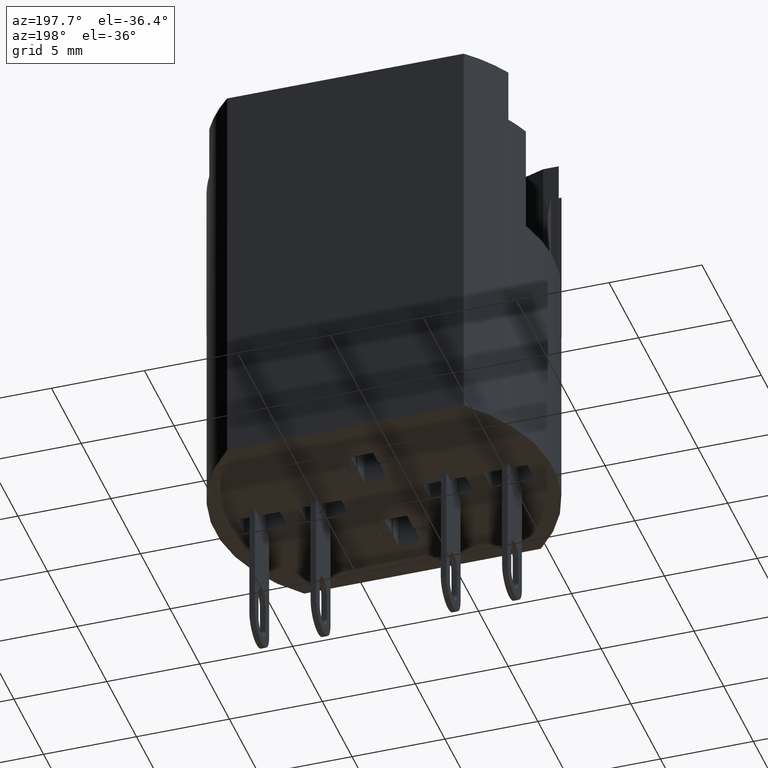
[diagram: clean part render]
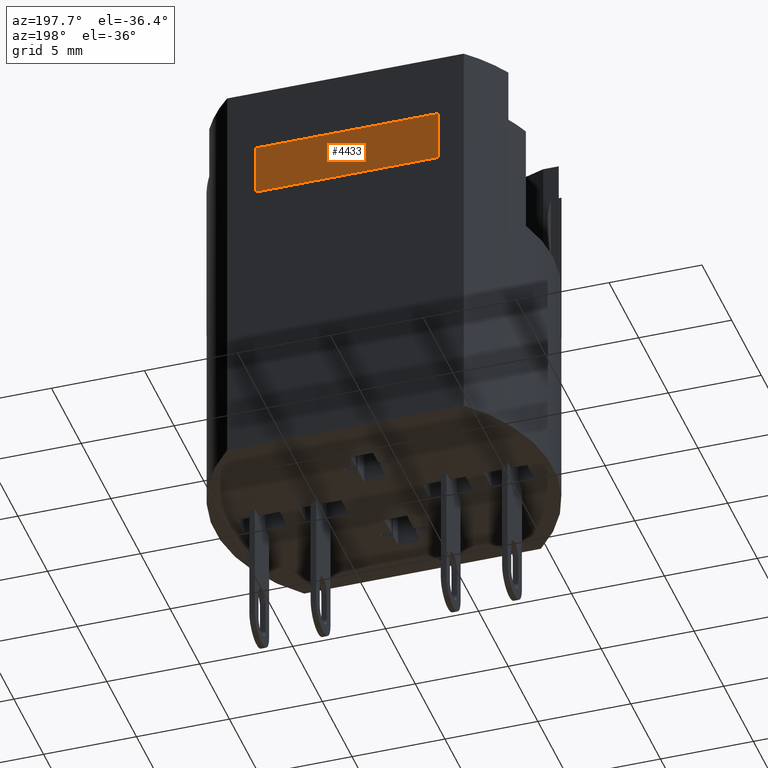
[diagram: same view with one face highlighted and labeled with its STEP entity id]
A machine part, auxiliary view. The second image highlights one B-rep face of the part: STEP entity #4433.
In plain terms, the highlighted planar face has unit normal (0, -1, -0).
Its self-contained STEP definition (entity closure, byte-faithful):
#269=FACE_OUTER_BOUND('',#508,.T.);
#508=EDGE_LOOP('',(#3401,#3402,#3403,#3404));
#936=LINE('',#6761,#1508);
#940=LINE('',#6768,#1512);
#943=LINE('',#6774,#1515);
#945=LINE('',#6777,#1517);
#1508=VECTOR('',#5470,10.);
#1512=VECTOR('',#5476,10.);
#1515=VECTOR('',#5481,10.);
#1517=VECTOR('',#5485,10.);
#2029=VERTEX_POINT('',#6758);
#2030=VERTEX_POINT('',#6760);
#2032=VERTEX_POINT('',#6766);
#2034=VERTEX_POINT('',#6772);
#2544=EDGE_CURVE('',#2029,#2030,#936,.T.);
#2548=EDGE_CURVE('',#2032,#2029,#940,.T.);
#2551=EDGE_CURVE('',#2034,#2032,#943,.T.);
#2553=EDGE_CURVE('',#2030,#2034,#945,.T.);
#3401=ORIENTED_EDGE('',*,*,#2553,.F.);
#3402=ORIENTED_EDGE('',*,*,#2544,.F.);
#3403=ORIENTED_EDGE('',*,*,#2548,.F.);
#3404=ORIENTED_EDGE('',*,*,#2551,.F.);
#4204=PLANE('',#4720);
#4433=ADVANCED_FACE('',(#269),#4204,.F.);
#4720=AXIS2_PLACEMENT_3D('',#6778,#5486,#5487);
#5470=DIRECTION('',(-3.99482238132762E-16,-3.88578058618806E-16,1.));
#5476=DIRECTION('',(1.,2.14033326316087E-15,2.01228126592556E-16));
#5481=DIRECTION('',(2.01228126592556E-16,3.88578058618806E-16,-1.));
#5485=DIRECTION('',(-1.,-2.14033326316087E-15,-2.01228126592556E-16));
#5486=DIRECTION('center_axis',(2.14033326316087E-15,-1.,-3.88578058618806E-16));
#5487=DIRECTION('ref_axis',(2.01228126592556E-16,3.88578058618806E-16,-1.));
#6758=CARTESIAN_POINT('',(4.92499999999998,6.499,16.1));
#6760=CARTESIAN_POINT('',(4.92499999999998,6.499,18.9));
#6761=CARTESIAN_POINT('',(4.92499999999998,6.499,16.1));
#6766=CARTESIAN_POINT('',(-4.92500000000002,6.49899999999998,16.1));
#6768=CARTESIAN_POINT('',(-4.92500000000002,6.49899999999998,16.1));
#6772=CARTESIAN_POINT('',(-4.92500000000002,6.49899999999998,18.9));
#6774=CARTESIAN_POINT('',(-4.92500000000002,6.49899999999998,18.9));
#6777=CARTESIAN_POINT('',(4.92499999999998,6.499,18.9));
#6778=CARTESIAN_POINT('Origin',(-1.79866296049648E-14,6.49899999999999,
17.5));